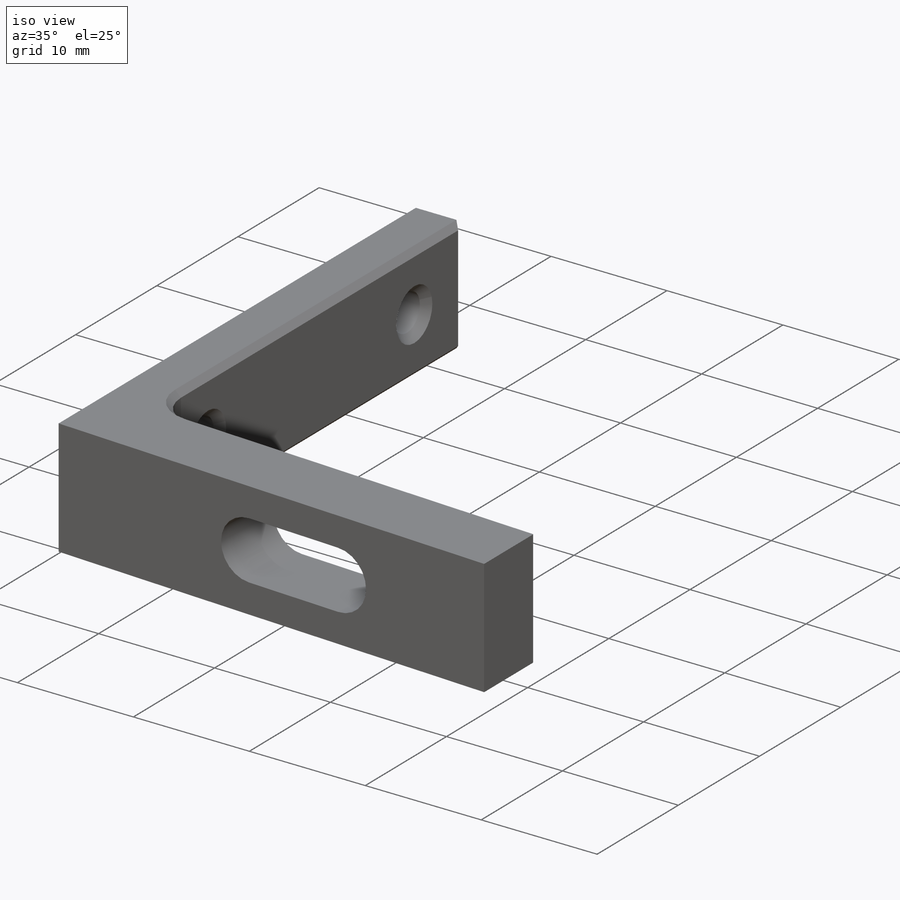
[diagram: iso view]
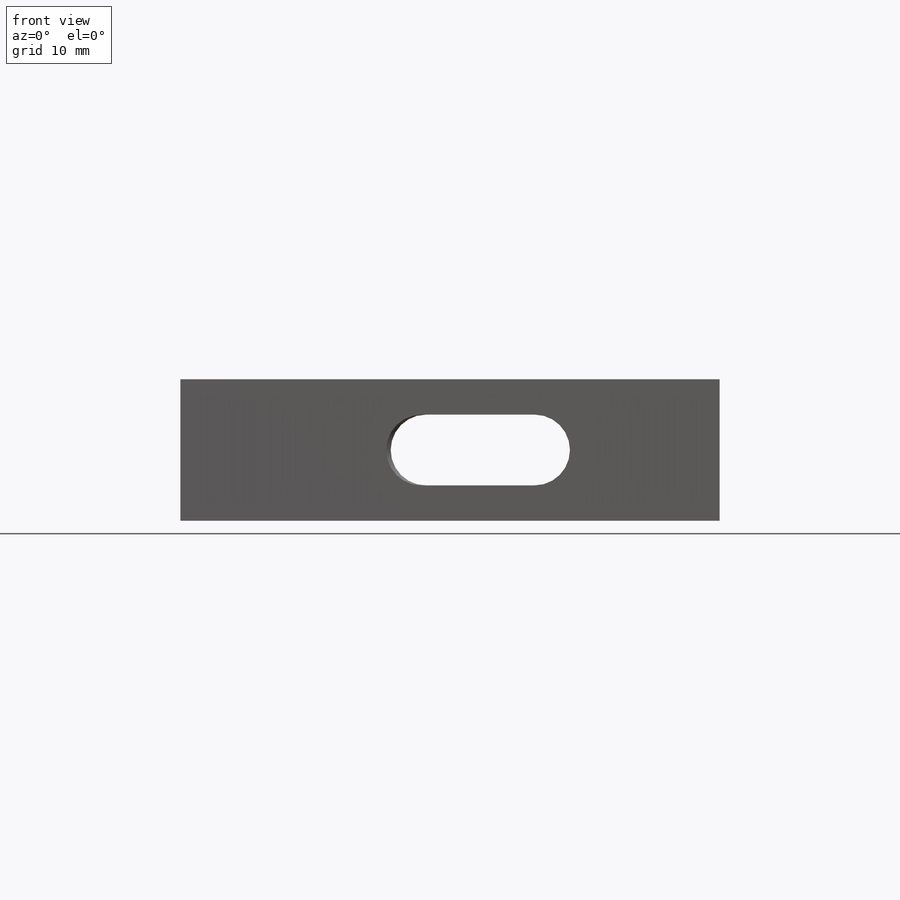
[diagram: front view]
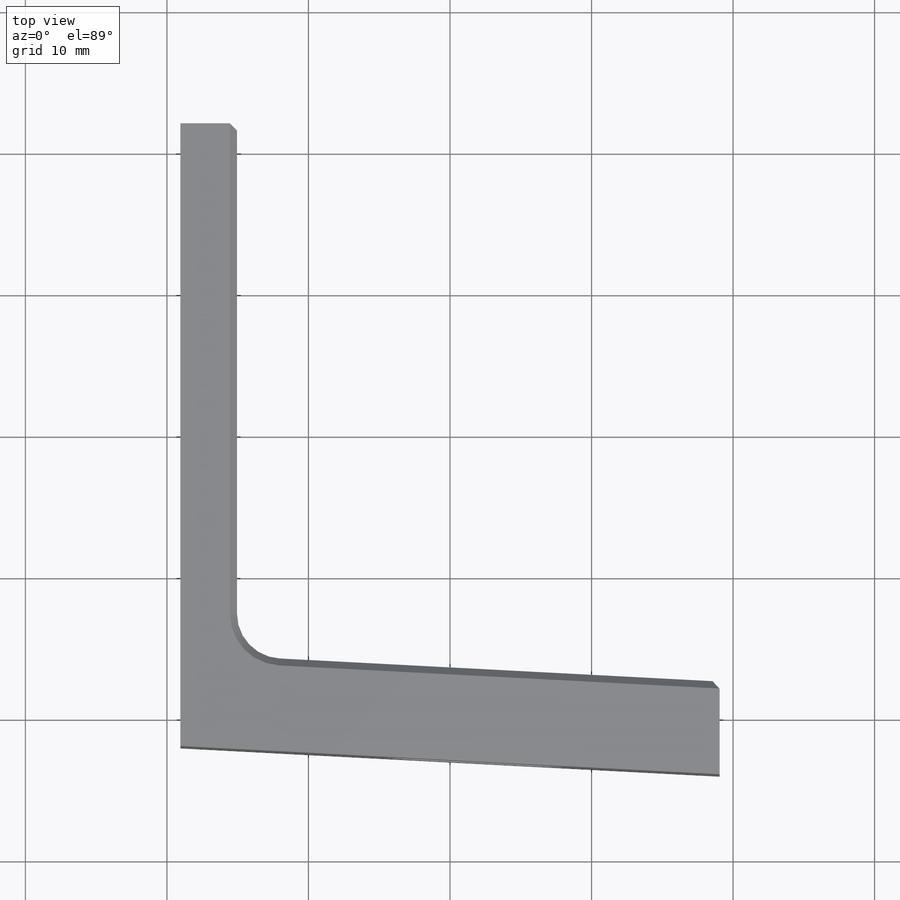
[diagram: top view]
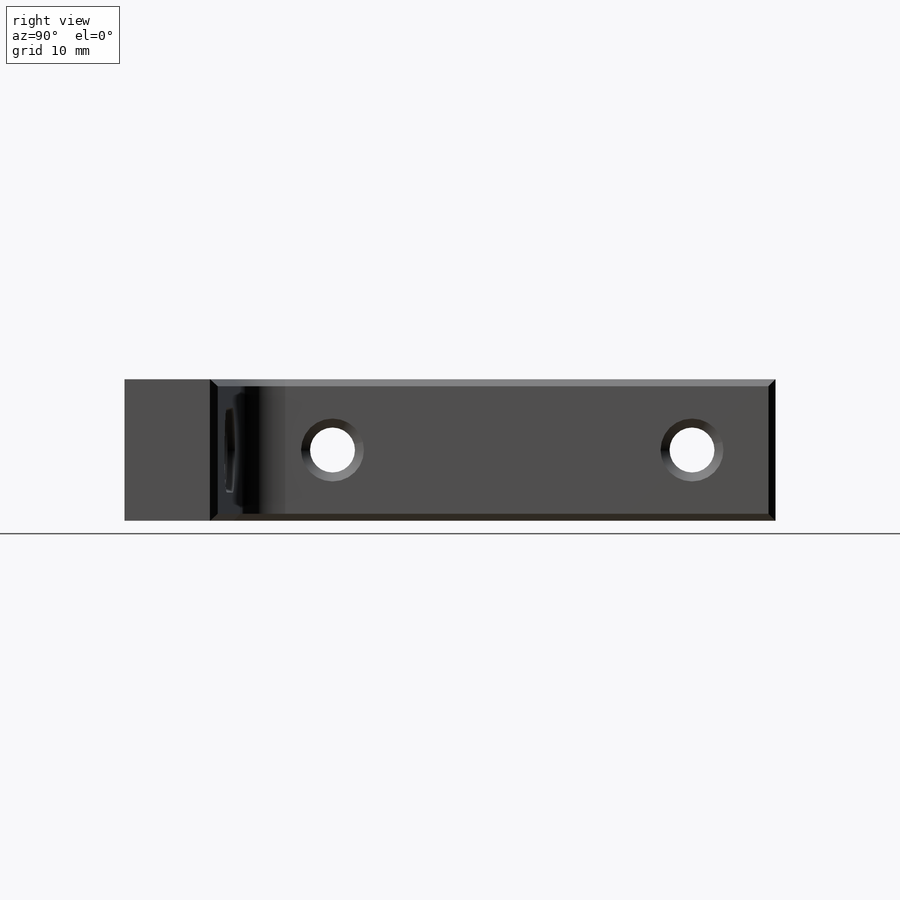
[diagram: right view]
SOLIDWORKS PART (.sldprt)
format: sldprt  version: not decoded by parser v0  size: 250,880 bytes
history: native  units: mm
features: sketch x6, cut_extrude x3, chamfer x2, material x1, extrude x1, hole x1, fillet x1 (+16 scaffold rows collapsed)
feature tree (31):
  scaffold x16  (default folders/planes/origin — collapsed)
  material  "Material <not specified>"
  sketch  "Sketch1"  dims[D1=38.1mm D2=44.0mm]
  extrude  "Boss-Extrude1"  Depth=10mm
  sketch  "Sketch2"  dims[D1=4.0mm D2=6.35mm]
  cut_extrude  "Cut-Extrude1"  [1 undecoded]
  hole  "1/8 (0.125) Diameter Hole1"  Diameter=3.175mm Depth=4mm
  sketch  "Sketch4"  dims[c1.D1=12.7mm c1.D2=25.4mm c2.D1=6.35mm]
  sketch  "Sketch3"  dims[hole-wizard template sketch: 47 standard entries collapsed; hole parameters kept: c15.Thru Hole Depth=4.0mm c15.Near C'Sink Dia.=4.445mm c15.D4=~3.666174mm c15.Near C'Sink Angle=90.0deg c15.Far C'Sink Dia.=4.445mm c15.D6=~9.919017mm c15.Far C'Sink Angle=90.0deg c15.D1=3.0deg]
  sketch  "Sketch7"
  cut_extrude  "Cut-Extrude2"  [1 undecoded]
  sketch  "Sketch8"  dims[c1.D2=2.5mm c1.D1=5.0mm c2.D2=8.0mm c2.D3=19.05mm c2.D4=~26.712185mm c3.D3=21.4mm c3.D4=~3.994518mm]
  cut_extrude  "Cut-Extrude3"  [1 undecoded]
  fillet  "Fillet2"  Radius=3.175mm
  chamfer  "Chamfer1"  Distance=0.5mm Angle=45deg
  chamfer  "Chamfer2"  Distance=0.5mm Angle=45deg
decode coverage: 10 of 14 modeling features carry decoded parameters
note: ~ marks probable driven/reference dimensions
note: 3 parameter values undecoded
summary: no parameter record found for 3 features
note: suppression state not decoded; provenance and decode notes live in map.json
